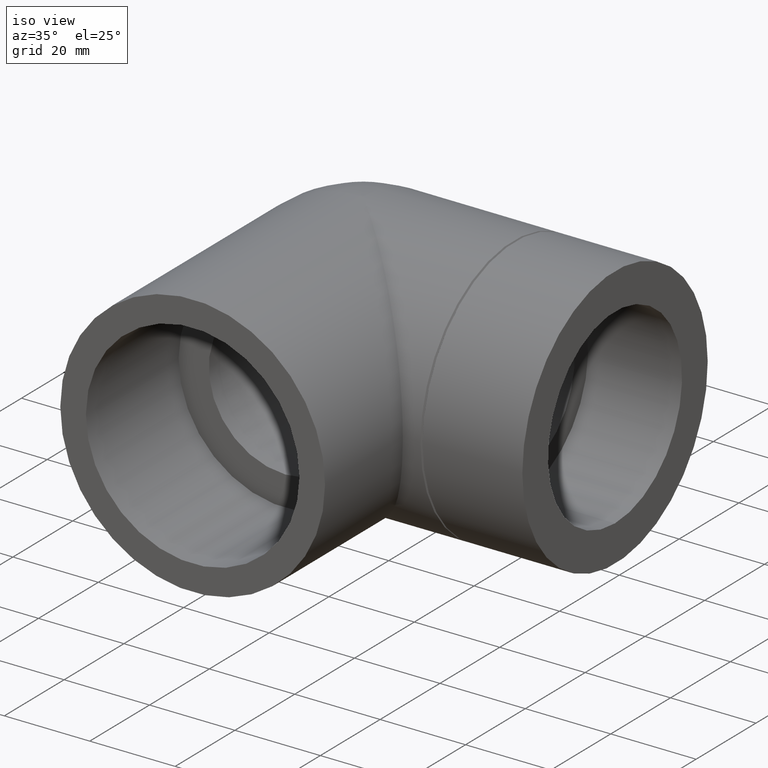
[diagram: clean part render]
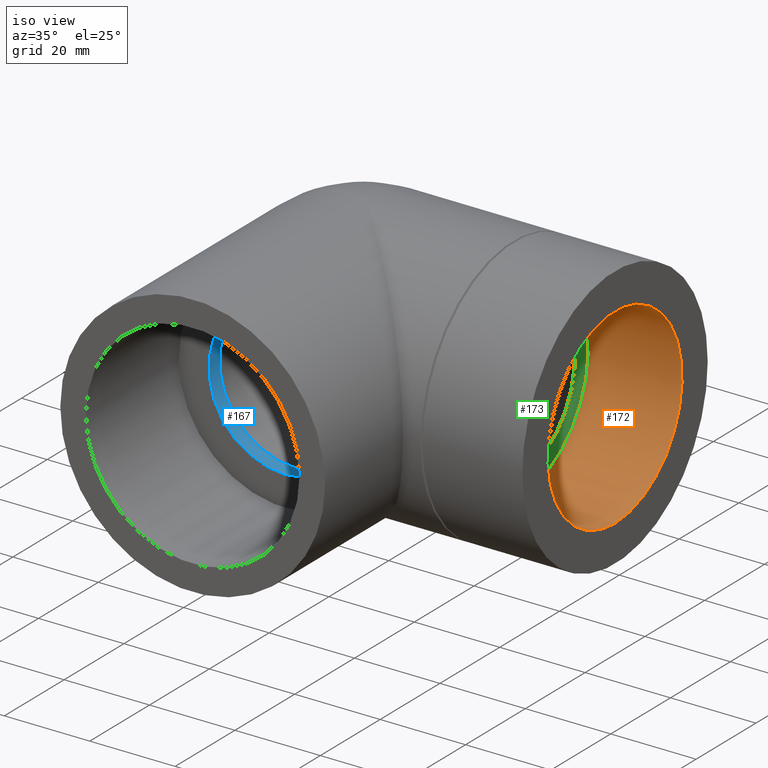
[diagram: same view with three faces highlighted in distinct colors, each labeled with its STEP entity id]
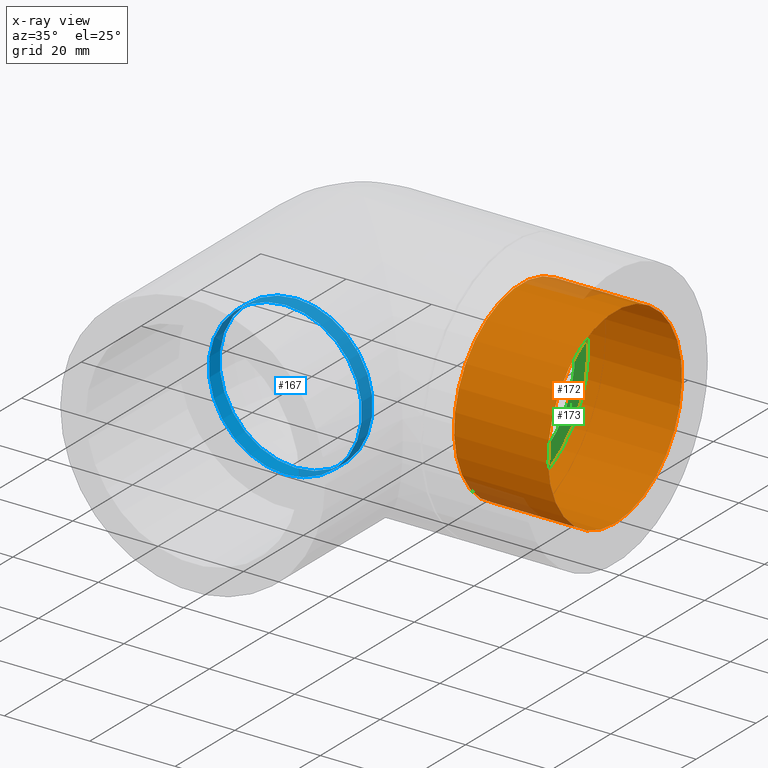
[diagram: x-ray of the same camera — body ghosted, the three highlighted faces saturated]
A machine part, iso view with three faces highlighted in distinct colors.
The next image is the same camera in x-ray (body ghosted, the three faces saturated) — at least one of them is partly hidden behind the body in this view.
Their STEP definitions:

[orange] entity #172 — the highlighted cylindrical surface (bore or boss wall) has radius 22.4225 mm, axis along (-1, 0, 0).
#29=FACE_BOUND('',#64,.T.);
#43=FACE_OUTER_BOUND('',#63,.T.);
#63=EDGE_LOOP('',(#138));
#64=EDGE_LOOP('',(#139));
#88=CIRCLE('',#196,22.4225);
#89=CIRCLE('',#197,22.4225);
#103=VERTEX_POINT('',#298);
#104=VERTEX_POINT('',#300);
#118=EDGE_CURVE('',#103,#103,#88,.T.);
#119=EDGE_CURVE('',#104,#104,#89,.T.);
#138=ORIENTED_EDGE('',*,*,#118,.T.);
#139=ORIENTED_EDGE('',*,*,#119,.F.);
#163=CYLINDRICAL_SURFACE('',#195,22.4225);
#172=ADVANCED_FACE('',(#43,#29),#163,.F.);
#195=AXIS2_PLACEMENT_3D('',#297,#239,#240);
#196=AXIS2_PLACEMENT_3D('',#299,#241,#242);
#197=AXIS2_PLACEMENT_3D('',#301,#243,#244);
#239=DIRECTION('center_axis',(-1.,0.,0.));
#240=DIRECTION('ref_axis',(0.,0.,1.));
#241=DIRECTION('center_axis',(-1.,0.,0.));
#242=DIRECTION('ref_axis',(0.,0.,1.));
#243=DIRECTION('center_axis',(-1.,0.,0.));
#244=DIRECTION('ref_axis',(0.,0.,1.));
#297=CARTESIAN_POINT('Origin',(59.,0.,0.));
#298=CARTESIAN_POINT('',(37.,2.74596428538815E-15,-22.4225));
#299=CARTESIAN_POINT('Origin',(37.,0.,0.));
#300=CARTESIAN_POINT('',(59.,2.74596428538815E-15,-22.4225));
#301=CARTESIAN_POINT('Origin',(59.,0.,0.));

[blue] entity #167 — the highlighted cylindrical surface (bore or boss wall) has radius 17.938 mm, axis along (0, -1, 0).
#24=FACE_BOUND('',#54,.T.);
#38=FACE_OUTER_BOUND('',#53,.T.);
#53=EDGE_LOOP('',(#128));
#54=EDGE_LOOP('',(#129));
#82=CIRCLE('',#185,17.938);
#83=CIRCLE('',#186,17.938);
#97=VERTEX_POINT('',#281);
#98=VERTEX_POINT('',#283);
#112=EDGE_CURVE('',#97,#97,#82,.T.);
#113=EDGE_CURVE('',#98,#98,#83,.T.);
#128=ORIENTED_EDGE('',*,*,#112,.F.);
#129=ORIENTED_EDGE('',*,*,#113,.F.);
#160=CYLINDRICAL_SURFACE('',#184,17.938);
#167=ADVANCED_FACE('',(#38,#24),#160,.F.);
#184=AXIS2_PLACEMENT_3D('',#280,#217,#218);
#185=AXIS2_PLACEMENT_3D('',#282,#219,#220);
#186=AXIS2_PLACEMENT_3D('',#284,#221,#222);
#217=DIRECTION('center_axis',(1.00698568368607E-17,-1.,0.));
#218=DIRECTION('ref_axis',(0.,0.,1.));
#219=DIRECTION('center_axis',(-1.22464679914735E-16,1.,0.));
#220=DIRECTION('ref_axis',(0.,0.,1.));
#221=DIRECTION('center_axis',(-2.83276944882399E-16,-1.,0.));
#222=DIRECTION('ref_axis',(0.,0.,1.));
#280=CARTESIAN_POINT('Origin',(4.44821387711936E-15,-22.4225,0.));
#281=CARTESIAN_POINT('',(2.28746736164271E-15,-26.,-17.938));
#282=CARTESIAN_POINT('Origin',(4.48423878995323E-15,-26.,0.));
#283=CARTESIAN_POINT('',(2.25144244880884E-15,-22.4225,-17.938));
#284=CARTESIAN_POINT('Origin',(4.44821387711936E-15,-22.4225,0.));

[green] entity #173 — the highlighted planar face has unit normal (1, 0, 0).
#20=PLANE('',#198);
#30=FACE_BOUND('',#66,.T.);
#44=FACE_OUTER_BOUND('',#65,.T.);
#65=EDGE_LOOP('',(#140));
#66=EDGE_LOOP('',(#141));
#85=CIRCLE('',#190,17.938);
#88=CIRCLE('',#196,22.4225);
#100=VERTEX_POINT('',#289);
#103=VERTEX_POINT('',#298);
#115=EDGE_CURVE('',#100,#100,#85,.T.);
#118=EDGE_CURVE('',#103,#103,#88,.T.);
#140=ORIENTED_EDGE('',*,*,#118,.F.);
#141=ORIENTED_EDGE('',*,*,#115,.T.);
#173=ADVANCED_FACE('',(#44,#30),#20,.T.);
#190=AXIS2_PLACEMENT_3D('',#290,#229,#230);
#196=AXIS2_PLACEMENT_3D('',#299,#241,#242);
#198=AXIS2_PLACEMENT_3D('',#302,#245,#246);
#229=DIRECTION('center_axis',(-1.,0.,0.));
#230=DIRECTION('ref_axis',(0.,0.,1.));
#241=DIRECTION('center_axis',(-1.,0.,0.));
#242=DIRECTION('ref_axis',(0.,0.,1.));
#245=DIRECTION('center_axis',(1.,0.,0.));
#246=DIRECTION('ref_axis',(0.,0.,-1.));
#289=CARTESIAN_POINT('',(37.,2.19677142831052E-15,-17.938));
#290=CARTESIAN_POINT('Origin',(37.,8.32725808212508E-53,0.));
#298=CARTESIAN_POINT('',(37.,2.74596428538815E-15,-22.4225));
#299=CARTESIAN_POINT('Origin',(37.,0.,0.));
#302=CARTESIAN_POINT('Origin',(37.,3.30091953655229E-16,8.89014264426138E-16));